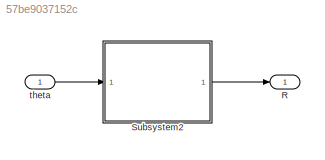
MODEL slx_57be9037152c
KIND model
CONFIG AbsTol = auto
CONFIG EnableMultiTasking = off
CONFIG FixedStep = auto
CONFIG MaxStep = auto
CONFIG MinStep = auto
CONFIG RelTol = 1e-3
CONFIG SampleTimeConstraint = Unconstrained
CONFIG SolverName = VariableStepAuto
CONFIG StartTime = 0.0
CONFIG StopTime = 10.0
BLOCK [Outport] R
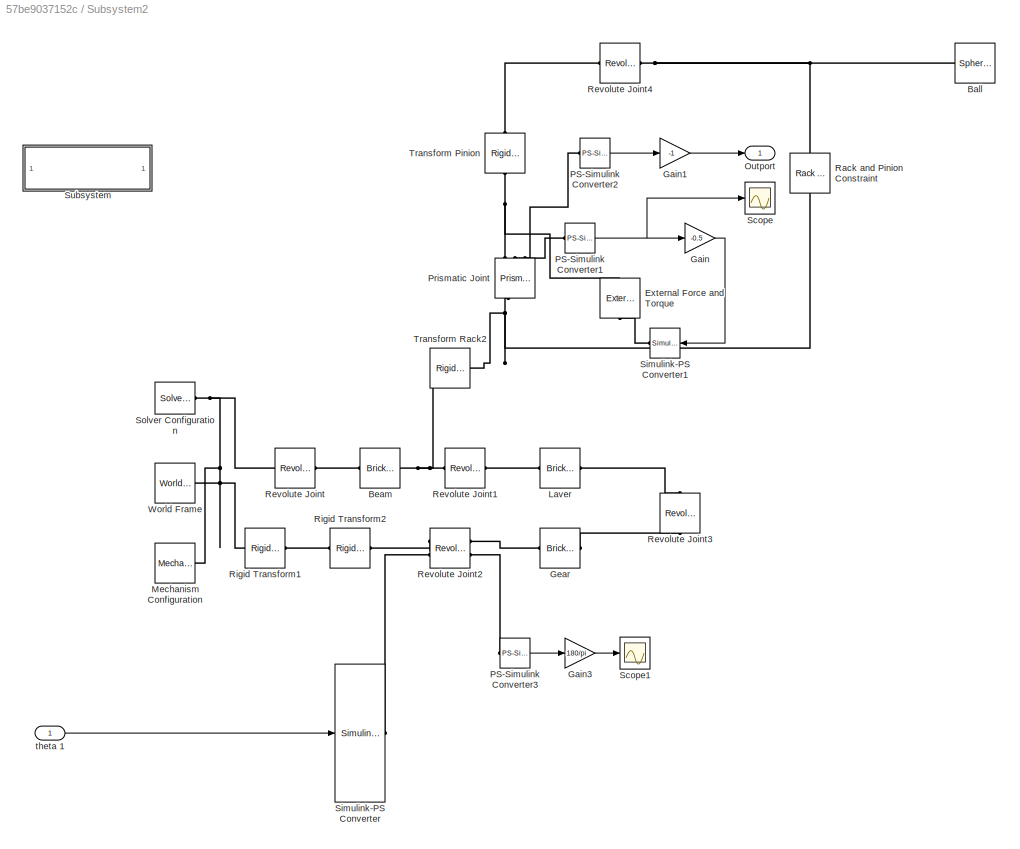
BLOCK [SubSystem] Subsystem2
  Ports = [1, 1]
  RequestExecContextInheritance = off
BLOCK [Reference] Subsystem2/Ball  REF=sm_lib/Body Elements/Spherical Solid
  Ports = [0, 0, 0, 0, 0, 0, 1]
  SourceBlock = sm_lib/Body Elements/Spherical Solid
  SourceProductBaseCode = MS
  SourceType = Spherical Solid
BLOCK [Reference] Subsystem2/Beam  REF=sm_lib/Body Elements/Brick Solid
  NameLocation = top
  Ports = [0, 0, 0, 0, 0, 1, 1]
  SourceBlock = sm_lib/Body Elements/Brick Solid
  SourceProductBaseCode = MS
  SourceType = Brick Solid
BLOCK [Reference] Subsystem2/External Force and Torque  REF=sm_lib/Forces and
Torques/External Force
and Torque
  NameLocation = right
  Ports = [0, 0, 0, 0, 0, 1, 1]
  SourceBlock = sm_lib/Forces and\nTorques/External Force\nand Torque
  SourceProductBaseCode = MS
  SourceType = External Force\nand Torque
BLOCK [Gain] Subsystem2/Gain
  Gain = -0.5
BLOCK [Gain] Subsystem2/Gain1
  Gain = -1
BLOCK [Gain] Subsystem2/Gain3
  Gain = 180/pi
BLOCK [Reference] Subsystem2/Gear  REF=sm_lib/Body Elements/Brick Solid
  Ports = [0, 0, 0, 0, 0, 1, 1]
  SourceBlock = sm_lib/Body Elements/Brick Solid
  SourceProductBaseCode = MS
  SourceType = Brick Solid
BLOCK [Reference] Subsystem2/Laver  REF=sm_lib/Body Elements/Brick Solid
  Ports = [0, 0, 0, 0, 0, 1, 1]
  SourceBlock = sm_lib/Body Elements/Brick Solid
  SourceProductBaseCode = MS
  SourceType = Brick Solid
BLOCK [Reference] Subsystem2/Mechanism Configuration  REF=sm_lib/Utilities/Mechanism
Configuration
  Ports = [0, 0, 0, 0, 0, 0, 1]
  SourceBlock = sm_lib/Utilities/Mechanism\nConfiguration
  SourceProductBaseCode = MS
  SourceType = Mechanism\nConfiguration
BLOCK [Outport] Subsystem2/Outport
BLOCK [Reference] Subsystem2/PS-Simulink Converter1  REF=nesl_utility/PS-Simulink
Converter
  Ports = [0, 1, 0, 0, 0, 1]
  SourceBlock = nesl_utility/PS-Simulink\nConverter
  SourceProductBaseCode = PW,SS
  SourceType = PS-Simulink\nConverter
BLOCK [Reference] Subsystem2/PS-Simulink Converter2  REF=nesl_utility/PS-Simulink
Converter
  Ports = [0, 1, 0, 0, 0, 1]
  SourceBlock = nesl_utility/PS-Simulink\nConverter
  SourceProductBaseCode = PW,SS
  SourceType = PS-Simulink\nConverter
BLOCK [Reference] Subsystem2/PS-Simulink Converter3  REF=nesl_utility/PS-Simulink
Converter
  Ports = [0, 1, 0, 0, 0, 1]
  SourceBlock = nesl_utility/PS-Simulink\nConverter
  SourceProductBaseCode = PW,SS
  SourceType = PS-Simulink\nConverter
BLOCK [Reference] Subsystem2/Prismatic Joint  REF=sm_lib/Joints/Prismatic
Joint
  NameLocation = left
  Ports = [0, 0, 0, 0, 0, 2, 3]
  SourceBlock = sm_lib/Joints/Prismatic\nJoint
  SourceProductBaseCode = MS
  SourceType = Prismatic\nJoint
BLOCK [Reference] Subsystem2/Rack and Pinion Constraint  REF=sm_lib/Gears and
Couplings/Gears/Rack and Pinion
Constraint
  NameLocation = right
  Ports = [0, 0, 0, 0, 0, 1, 1]
  SourceBlock = sm_lib/Gears and\nCouplings/Gears/Rack and Pinion\nConstraint
  SourceProductBaseCode = MS
  SourceType = Rack and Pinion\nConstraint
BLOCK [Reference] Subsystem2/Revolute Joint  REF=sm_lib/Joints/Revolute Joint
  Ports = [0, 0, 0, 0, 0, 1, 1]
  SourceBlock = sm_lib/Joints/Revolute Joint
  SourceProductBaseCode = MS
  SourceType = Revolute Joint
BLOCK [Reference] Subsystem2/Revolute Joint1  REF=sm_lib/Joints/Revolute Joint
  Ports = [0, 0, 0, 0, 0, 1, 1]
  SourceBlock = sm_lib/Joints/Revolute Joint
  SourceProductBaseCode = MS
  SourceType = Revolute Joint
BLOCK [Reference] Subsystem2/Revolute Joint2  REF=sm_lib/Joints/Revolute Joint
  Ports = [0, 0, 0, 0, 0, 2, 2]
  SourceBlock = sm_lib/Joints/Revolute Joint
  SourceProductBaseCode = MS
  SourceType = Revolute Joint
BLOCK [Reference] Subsystem2/Revolute Joint3  REF=sm_lib/Joints/Revolute Joint
  NameLocation = left
  Ports = [0, 0, 0, 0, 0, 1, 1]
  SourceBlock = sm_lib/Joints/Revolute Joint
  SourceProductBaseCode = MS
  SourceType = Revolute Joint
BLOCK [Reference] Subsystem2/Revolute Joint4  REF=sm_lib/Joints/Revolute Joint
  Ports = [0, 0, 0, 0, 0, 1, 1]
  SourceBlock = sm_lib/Joints/Revolute Joint
  SourceProductBaseCode = MS
  SourceType = Revolute Joint
BLOCK [Reference] Subsystem2/Rigid Transform1  REF=sm_lib/Frames and
Transforms/Rigid
Transform
  Ports = [0, 0, 0, 0, 0, 1, 1]
  SourceBlock = sm_lib/Frames and\nTransforms/Rigid\nTransform
  SourceProductBaseCode = MS
  SourceType = Rigid\nTransform
BLOCK [Reference] Subsystem2/Rigid Transform2  REF=sm_lib/Frames and
Transforms/Rigid
Transform
  Ports = [0, 0, 0, 0, 0, 1, 1]
  SourceBlock = sm_lib/Frames and\nTransforms/Rigid\nTransform
  SourceProductBaseCode = MS
  SourceType = Rigid\nTransform
BLOCK [Scope] Subsystem2/Scope
  Floating = off
  NumInputPorts = 1
  Ports = [1]
  ScopeSpecificationString = Simulink.scopes.TimeScopeBlockCfg('CurrentConfiguration', extmgr.ConfigurationSet(extmgr.Configuration('Core','General UI',true,'FigureColor',[0.156862745098039 0.156862745098039 0.156862745098039]),extmgr.Configuration('Core','Source UI',true),extmgr.Configuration('Sources','WiredSimulink',true,'DataLoggingSaveFormat','StructureWithTime','DataLoggingDecimation','1','DataLoggingDecimateData',true)...<+2734ch>
BLOCK [Scope] Subsystem2/Scope1
  Floating = off
  NumInputPorts = 1
  Ports = [1]
  ScopeSpecificationString = C++SS(StrPVP('Open','off'),StrPVP('TimeRange','auto'),StrPVP('TickLabels','OneTimeTick'),StrPVP('ShowLegends','off'),StrPVP('LimitDataPoints','off'),StrPVP('MaxDataPoints','5000'),StrPVP('SaveToWorkspace','off'),StrPVP('SaveName','ScopeData1'),StrPVP('YMin','-1.66483'),StrPVP('YMax','6.08356'),StrPVP('BlockParamSampleInput','off'),StrPVP('BlockParamSampleTime','-1'),StrPVP('ZoomMode','on'),StrPVP(...<+581ch>
BLOCK [Reference] Subsystem2/Simulink-PS Converter  REF=nesl_utility/Simulink-PS
Converter
  Ports = [1, 0, 0, 0, 0, 0, 1]
  SourceBlock = nesl_utility/Simulink-PS\nConverter
  SourceProductBaseCode = PW,SS
  SourceType = Simulink-PS\nConverter
BLOCK [Reference] Subsystem2/Simulink-PS Converter1  REF=nesl_utility/Simulink-PS
Converter
  NameLocation = top
  Ports = [1, 0, 0, 0, 0, 0, 1]
  SourceBlock = nesl_utility/Simulink-PS\nConverter
  SourceProductBaseCode = PW,SS
  SourceType = Simulink-PS\nConverter
BLOCK [Reference] Subsystem2/Solver Configuration  REF=nesl_utility/Solver
Configuration
  Ports = [0, 0, 0, 0, 0, 0, 1]
  SourceBlock = nesl_utility/Solver\nConfiguration
  SourceProductBaseCode = PW,SS
  SourceType = Solver\nConfiguration
BLOCK [SubSystem] Subsystem2/Subsystem
  OpenFcn = open_system('sm_lib')
  Ports = []
  RequestExecContextInheritance = off
  ShowPortLabels = none
BLOCK [Reference] Subsystem2/Transform Pinion  REF=sm_lib/Frames and
Transforms/Rigid
Transform
  NameLocation = left
  Ports = [0, 0, 0, 0, 0, 1, 1]
  SourceBlock = sm_lib/Frames and\nTransforms/Rigid\nTransform
  SourceProductBaseCode = MS
  SourceType = Rigid\nTransform
BLOCK [Reference] Subsystem2/Transform Rack2  REF=sm_lib/Frames and
Transforms/Rigid
Transform
  Ports = [0, 0, 0, 0, 0, 1, 1]
  SourceBlock = sm_lib/Frames and\nTransforms/Rigid\nTransform
  SourceProductBaseCode = MS
  SourceType = Rigid\nTransform
BLOCK [Reference] Subsystem2/World Frame  REF=sm_lib/Frames and
Transforms/World Frame
  Ports = [0, 0, 0, 0, 0, 0, 1]
  SourceBlock = sm_lib/Frames and\nTransforms/World Frame
  SourceProductBaseCode = MS
  SourceType = World Frame
BLOCK [Inport] Subsystem2/theta 1
BLOCK [Inport] theta
LINE Subsystem2/Gain1:1 -> Subsystem2/Outport:1
LINE Subsystem2/Gain3:1 -> Subsystem2/Scope1:1
LINE Subsystem2/Gain:1 -> Subsystem2/Simulink-PS Converter1:1
NET Subsystem2/PS-Simulink Converter1:1 -> Subsystem2/Gain:1, Subsystem2/Scope:1
LINE Subsystem2/PS-Simulink Converter2:1 -> Subsystem2/Gain1:1
LINE Subsystem2/PS-Simulink Converter3:1 -> Subsystem2/Gain3:1
LINE Subsystem2/theta 1:1 -> Subsystem2/Simulink-PS Converter:1
LINE Subsystem2:1 -> R:1
LINE theta:1 -> Subsystem2:1
PNET net1: Subsystem2/Ball:RConn1 -- Subsystem2/Rack and Pinion Constraint:LConn1 -- Subsystem2/Revolute Joint4:RConn1
PNET net2: Subsystem2/Beam:LConn1 -- Subsystem2/Revolute Joint1:LConn1 -- Subsystem2/Transform Rack2:LConn1
PLINE Subsystem2/Beam:RConn1 -- Subsystem2/Revolute Joint:RConn1
PLINE Subsystem2/External Force and Torque:LConn1 -- Subsystem2/Simulink-PS Converter1:RConn1
PNET net3: Subsystem2/External Force and Torque:RConn1 -- Subsystem2/Prismatic Joint:RConn1 -- Subsystem2/Transform Pinion:LConn1
PLINE Subsystem2/Gear:LConn1 -- Subsystem2/Revolute Joint2:RConn1
PLINE Subsystem2/Gear:RConn1 -- Subsystem2/Revolute Joint3:RConn1
PLINE Subsystem2/Laver:LConn1 -- Subsystem2/Revolute Joint1:RConn1
PLINE Subsystem2/Laver:RConn1 -- Subsystem2/Revolute Joint3:LConn1
PNET net4: Subsystem2/Mechanism Configuration:RConn1 -- Subsystem2/Revolute Joint:LConn1 -- Subsystem2/Rigid Transform1:LConn1 -- Subsystem2/Solver Configuration:RConn1 -- Subsystem2/World Frame:RConn1
PLINE Subsystem2/PS-Simulink Converter1:LConn1 -- Subsystem2/Prismatic Joint:RConn3
PLINE Subsystem2/PS-Simulink Converter2:LConn1 -- Subsystem2/Prismatic Joint:RConn2
PLINE Subsystem2/PS-Simulink Converter3:LConn1 -- Subsystem2/Revolute Joint2:RConn2
PNET net5: Subsystem2/Prismatic Joint:LConn1 -- Subsystem2/Rack and Pinion Constraint:RConn1 -- Subsystem2/Transform Rack2:RConn1
PLINE Subsystem2/Revolute Joint2:LConn1 -- Subsystem2/Rigid Transform2:RConn1
PLINE Subsystem2/Revolute Joint2:LConn2 -- Subsystem2/Simulink-PS Converter:RConn1
PLINE Subsystem2/Revolute Joint4:LConn1 -- Subsystem2/Transform Pinion:RConn1
PLINE Subsystem2/Rigid Transform1:RConn1 -- Subsystem2/Rigid Transform2:LConn1
note: NET lines group one-source signal fan-out (src -> all destinations, sorted); 1:1 wires keep LINE; PNET lines group multi-terminal physical nets as a canonical sorted terminal list (undirected conserving connections); 2-terminal nets keep the pairwise PLINE form
